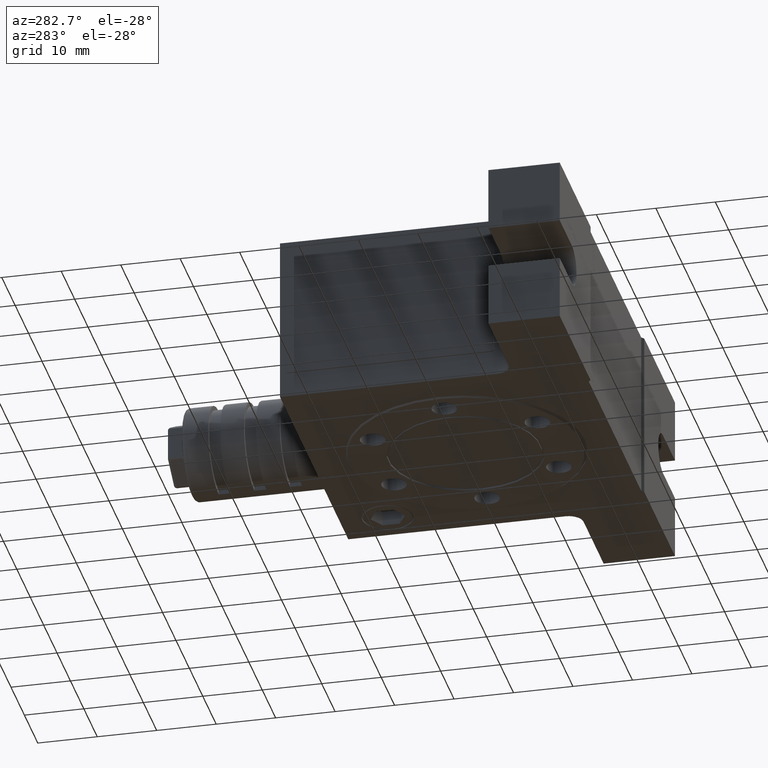
[diagram: clean part render]
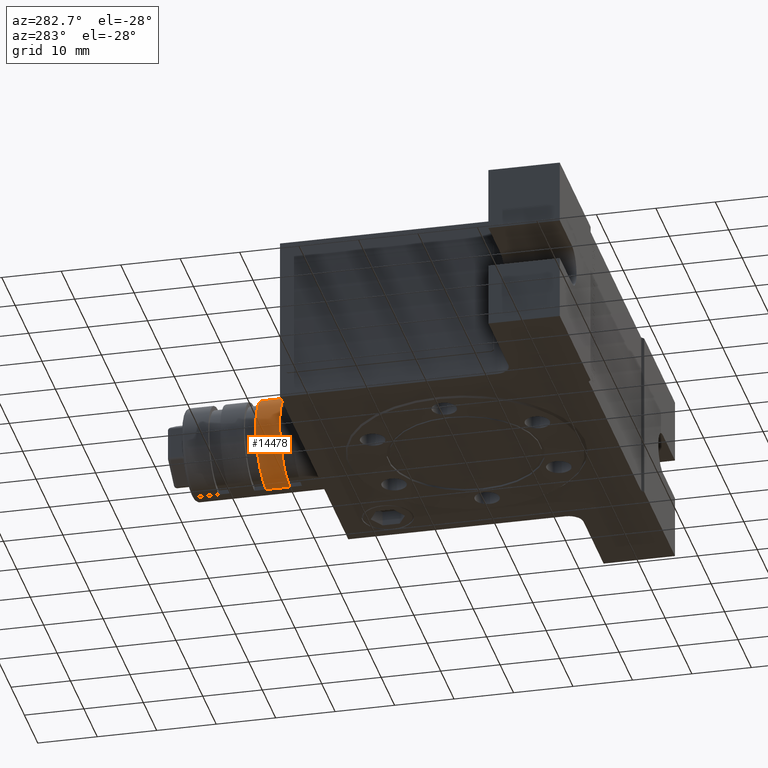
[diagram: same view with one face highlighted and labeled with its STEP entity id]
A machine part, auxiliary view. The second image highlights one B-rep face of the part: STEP entity #14478.
In plain terms, the highlighted cylindrical surface (partial cylindrical patch) has radius 7.75 mm, axis along (0, -1, 0).
Its self-contained STEP definition (entity closure, byte-faithful):
#4 = EDGE_CURVE ( 'NONE', #18623, #6901, #21425, .T. ) ;
#735 = DIRECTION ( 'NONE',  ( 0.0000000000000000000, 0.0000000000000000000, -1.000000000000000000 ) ) ;
#1012 = CIRCLE ( 'NONE', #15158, 7.750000000000000000 ) ;
#1269 = AXIS2_PLACEMENT_3D ( 'NONE', #4642, #12785, #25906 ) ;
#1347 = EDGE_CURVE ( 'NONE', #12092, #9972, #28489, .T. ) ;
#1598 = CARTESIAN_POINT ( 'NONE',  ( 17.50000000000000000, 50.00000000000000000, 7.703719777548939200E-030 ) ) ;
#1692 = CARTESIAN_POINT ( 'NONE',  ( 17.50000000000000000, 50.00000000000000000, 7.750000000000000000 ) ) ;
#2141 = ORIENTED_EDGE ( 'NONE', *, *, #21598, .T. ) ;
#3524 = AXIS2_PLACEMENT_3D ( 'NONE', #1598, #12614, #15327 ) ;
#3655 = ORIENTED_EDGE ( 'NONE', *, *, #30542, .F. ) ;
#4642 = CARTESIAN_POINT ( 'NONE',  ( 17.50000000000000000, 37.50000000000000000, 7.703719777548939200E-030 ) ) ;
#6901 = VERTEX_POINT ( 'NONE', #26925 ) ;
#9748 = CARTESIAN_POINT ( 'NONE',  ( 17.50000000000000000, 33.50000000000000000, 7.750000000000000000 ) ) ;
#9972 = VERTEX_POINT ( 'NONE', #9748 ) ;
#10524 = ORIENTED_EDGE ( 'NONE', *, *, #4, .T. ) ;
#12092 = VERTEX_POINT ( 'NONE', #29053 ) ;
#12614 = DIRECTION ( 'NONE',  ( 2.465190328815660100E-031, -1.000000000000000000, 1.281898970984143800E-030 ) ) ;
#12785 = DIRECTION ( 'NONE',  ( -2.465190328815660100E-031, 1.000000000000000000, -1.281898970984143800E-030 ) ) ;
#14478 = ADVANCED_FACE ( 'NONE', ( #28018 ), #17063, .T. ) ;
#15158 = AXIS2_PLACEMENT_3D ( 'NONE', #22536, #16979, #735 ) ;
#15313 = CIRCLE ( 'NONE', #1269, 7.750000000000000000 ) ;
#15327 = DIRECTION ( 'NONE',  ( 0.0000000000000000000, 0.0000000000000000000, 1.000000000000000000 ) ) ;
#16979 = DIRECTION ( 'NONE',  ( -2.465190328815660100E-031, 1.000000000000000000, -1.281898970984143800E-030 ) ) ;
#17063 = CYLINDRICAL_SURFACE ( 'NONE', #3524, 7.750000000000000000 ) ;
#17682 = CARTESIAN_POINT ( 'NONE',  ( 17.50000000000000000, 50.00000000000000000, -7.750000000000000000 ) ) ;
#18623 = VERTEX_POINT ( 'NONE', #29578 ) ;
#20424 = DIRECTION ( 'NONE',  ( 2.465190328815660100E-031, -1.000000000000000000, 1.281898970984143800E-030 ) ) ;
#21425 = LINE ( 'NONE', #17682, #24774 ) ;
#21598 = EDGE_CURVE ( 'NONE', #6901, #9972, #1012, .T. ) ;
#22536 = CARTESIAN_POINT ( 'NONE',  ( 17.50000000000000000, 33.50000000000000000, 7.703719777548939200E-030 ) ) ;
#24774 = VECTOR ( 'NONE', #20424, 1000.000000000000000 ) ;
#25906 = DIRECTION ( 'NONE',  ( 0.0000000000000000000, 0.0000000000000000000, -1.000000000000000000 ) ) ;
#25941 = DIRECTION ( 'NONE',  ( 2.465190328815660100E-031, -1.000000000000000000, 1.281898970984143800E-030 ) ) ;
#26925 = CARTESIAN_POINT ( 'NONE',  ( 17.50000000000000000, 33.50000000000000000, -7.750000000000000000 ) ) ;
#27641 = VECTOR ( 'NONE', #25941, 1000.000000000000000 ) ;
#28018 = FACE_OUTER_BOUND ( 'NONE', #33603, .T. ) ;
#28489 = LINE ( 'NONE', #1692, #27641 ) ;
#29053 = CARTESIAN_POINT ( 'NONE',  ( 17.50000000000000000, 37.50000000000000000, 7.750000000000000000 ) ) ;
#29578 = CARTESIAN_POINT ( 'NONE',  ( 17.50000000000000000, 37.50000000000000000, -7.750000000000000000 ) ) ;
#30542 = EDGE_CURVE ( 'NONE', #18623, #12092, #15313, .T. ) ;
#32294 = ORIENTED_EDGE ( 'NONE', *, *, #1347, .F. ) ;
#33603 = EDGE_LOOP ( 'NONE', ( #3655, #10524, #2141, #32294 ) ) ;